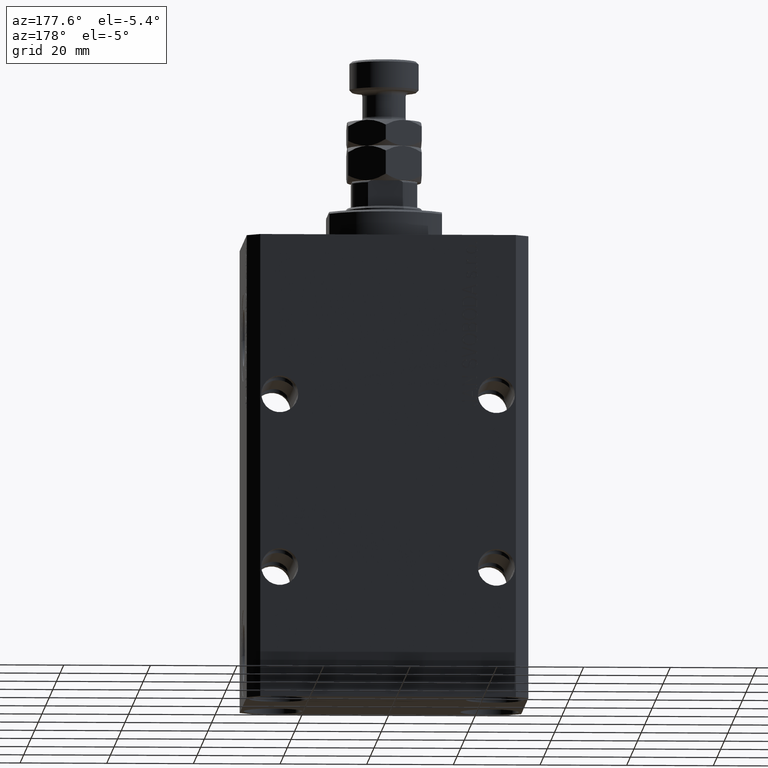
[diagram: clean part render]
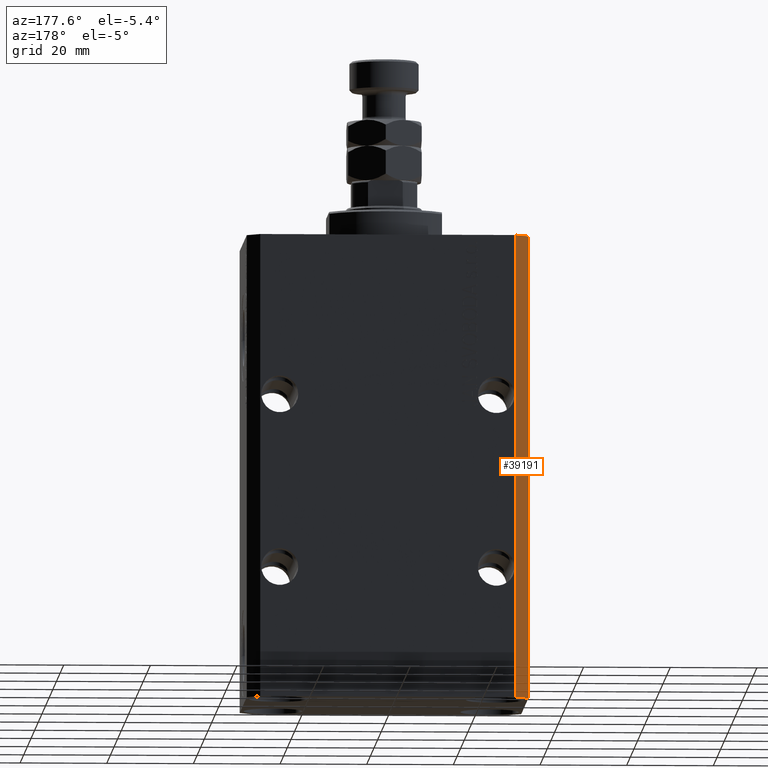
[diagram: same view with one face highlighted and labeled with its STEP entity id]
A machine part, auxiliary view. The second image highlights one B-rep face of the part: STEP entity #39191.
In plain terms, the highlighted planar face has unit normal (-0.7071, 0.7071, 0).
Its self-contained STEP definition (entity closure, byte-faithful):
#624 = ORIENTED_EDGE ( 'NONE', *, *, #17285, .T. ) ;
#1832 = CARTESIAN_POINT ( 'NONE',  ( -32.49999999999650413, 19.49999999999949907, -107.0000000000000000 ) ) ;
#2043 = CARTESIAN_POINT ( 'NONE',  ( -29.49999999999650413, 22.49999999999949907, -107.0000000000000000 ) ) ;
#2672 = VECTOR ( 'NONE', #16185, 1000.000000000000114 ) ;
#5887 = DIRECTION ( 'NONE',  ( -0.7071067811865474617, -0.7071067811865474617, 0.000000000000000000 ) ) ;
#6370 = EDGE_CURVE ( 'NONE', #8893, #37915, #34994, .T. ) ;
#6371 = ORIENTED_EDGE ( 'NONE', *, *, #26474, .F. ) ;
#8194 = EDGE_CURVE ( 'NONE', #8893, #30724, #10114, .T. ) ;
#8893 = VERTEX_POINT ( 'NONE', #46952 ) ;
#9431 = VECTOR ( 'NONE', #5887, 1000.000000000000114 ) ;
#10114 = LINE ( 'NONE', #2043, #15670 ) ;
#10642 = PLANE ( 'NONE',  #34102 ) ;
#10804 = VECTOR ( 'NONE', #27118, 1000.000000000000000 ) ;
#12355 = ORIENTED_EDGE ( 'NONE', *, *, #8194, .F. ) ;
#14460 = CARTESIAN_POINT ( 'NONE',  ( -29.49999999999650413, 22.49999999999949907, -107.0000000000000000 ) ) ;
#15670 = VECTOR ( 'NONE', #16580, 1000.000000000000000 ) ;
#16185 = DIRECTION ( 'NONE',  ( -0.7071067811865474617, -0.7071067811865474617, 0.000000000000000000 ) ) ;
#16580 = DIRECTION ( 'NONE',  ( 0.000000000000000000, 0.000000000000000000, 1.000000000000000000 ) ) ;
#17285 = EDGE_CURVE ( 'NONE', #37915, #22731, #45683, .T. ) ;
#21142 = CARTESIAN_POINT ( 'NONE',  ( -29.49999999999650413, 22.49999999999949907, 0.000000000000000000 ) ) ;
#22731 = VERTEX_POINT ( 'NONE', #26835 ) ;
#25438 = FACE_OUTER_BOUND ( 'NONE', #46299, .T. ) ;
#26474 = EDGE_CURVE ( 'NONE', #30724, #22731, #43294, .T. ) ;
#26835 = CARTESIAN_POINT ( 'NONE',  ( -32.49999999999650413, 19.49999999999949907, 0.000000000000000000 ) ) ;
#27118 = DIRECTION ( 'NONE',  ( 0.000000000000000000, 0.000000000000000000, 1.000000000000000000 ) ) ;
#30724 = VERTEX_POINT ( 'NONE', #47043 ) ;
#34102 = AXIS2_PLACEMENT_3D ( 'NONE', #14460, #36379, #43056 ) ;
#34137 = ORIENTED_EDGE ( 'NONE', *, *, #6370, .T. ) ;
#34994 = LINE ( 'NONE', #41697, #2672 ) ;
#36379 = DIRECTION ( 'NONE',  ( -0.7071067811865475727, 0.7071067811865475727, 0.000000000000000000 ) ) ;
#37915 = VERTEX_POINT ( 'NONE', #40645 ) ;
#39191 = ADVANCED_FACE ( 'NONE', ( #25438 ), #10642, .T. ) ;
#40645 = CARTESIAN_POINT ( 'NONE',  ( -32.49999999999650413, 19.49999999999949907, -107.0000000000000000 ) ) ;
#41697 = CARTESIAN_POINT ( 'NONE',  ( -29.49999999999650413, 22.49999999999949907, -107.0000000000000000 ) ) ;
#43056 = DIRECTION ( 'NONE',  ( -0.7071067811865474617, -0.7071067811865474617, 0.000000000000000000 ) ) ;
#43294 = LINE ( 'NONE', #21142, #9431 ) ;
#45683 = LINE ( 'NONE', #1832, #10804 ) ;
#46299 = EDGE_LOOP ( 'NONE', ( #6371, #12355, #34137, #624 ) ) ;
#46952 = CARTESIAN_POINT ( 'NONE',  ( -29.49999999999650413, 22.49999999999949907, -107.0000000000000000 ) ) ;
#47043 = CARTESIAN_POINT ( 'NONE',  ( -29.49999999999650413, 22.49999999999949907, 0.000000000000000000 ) ) ;